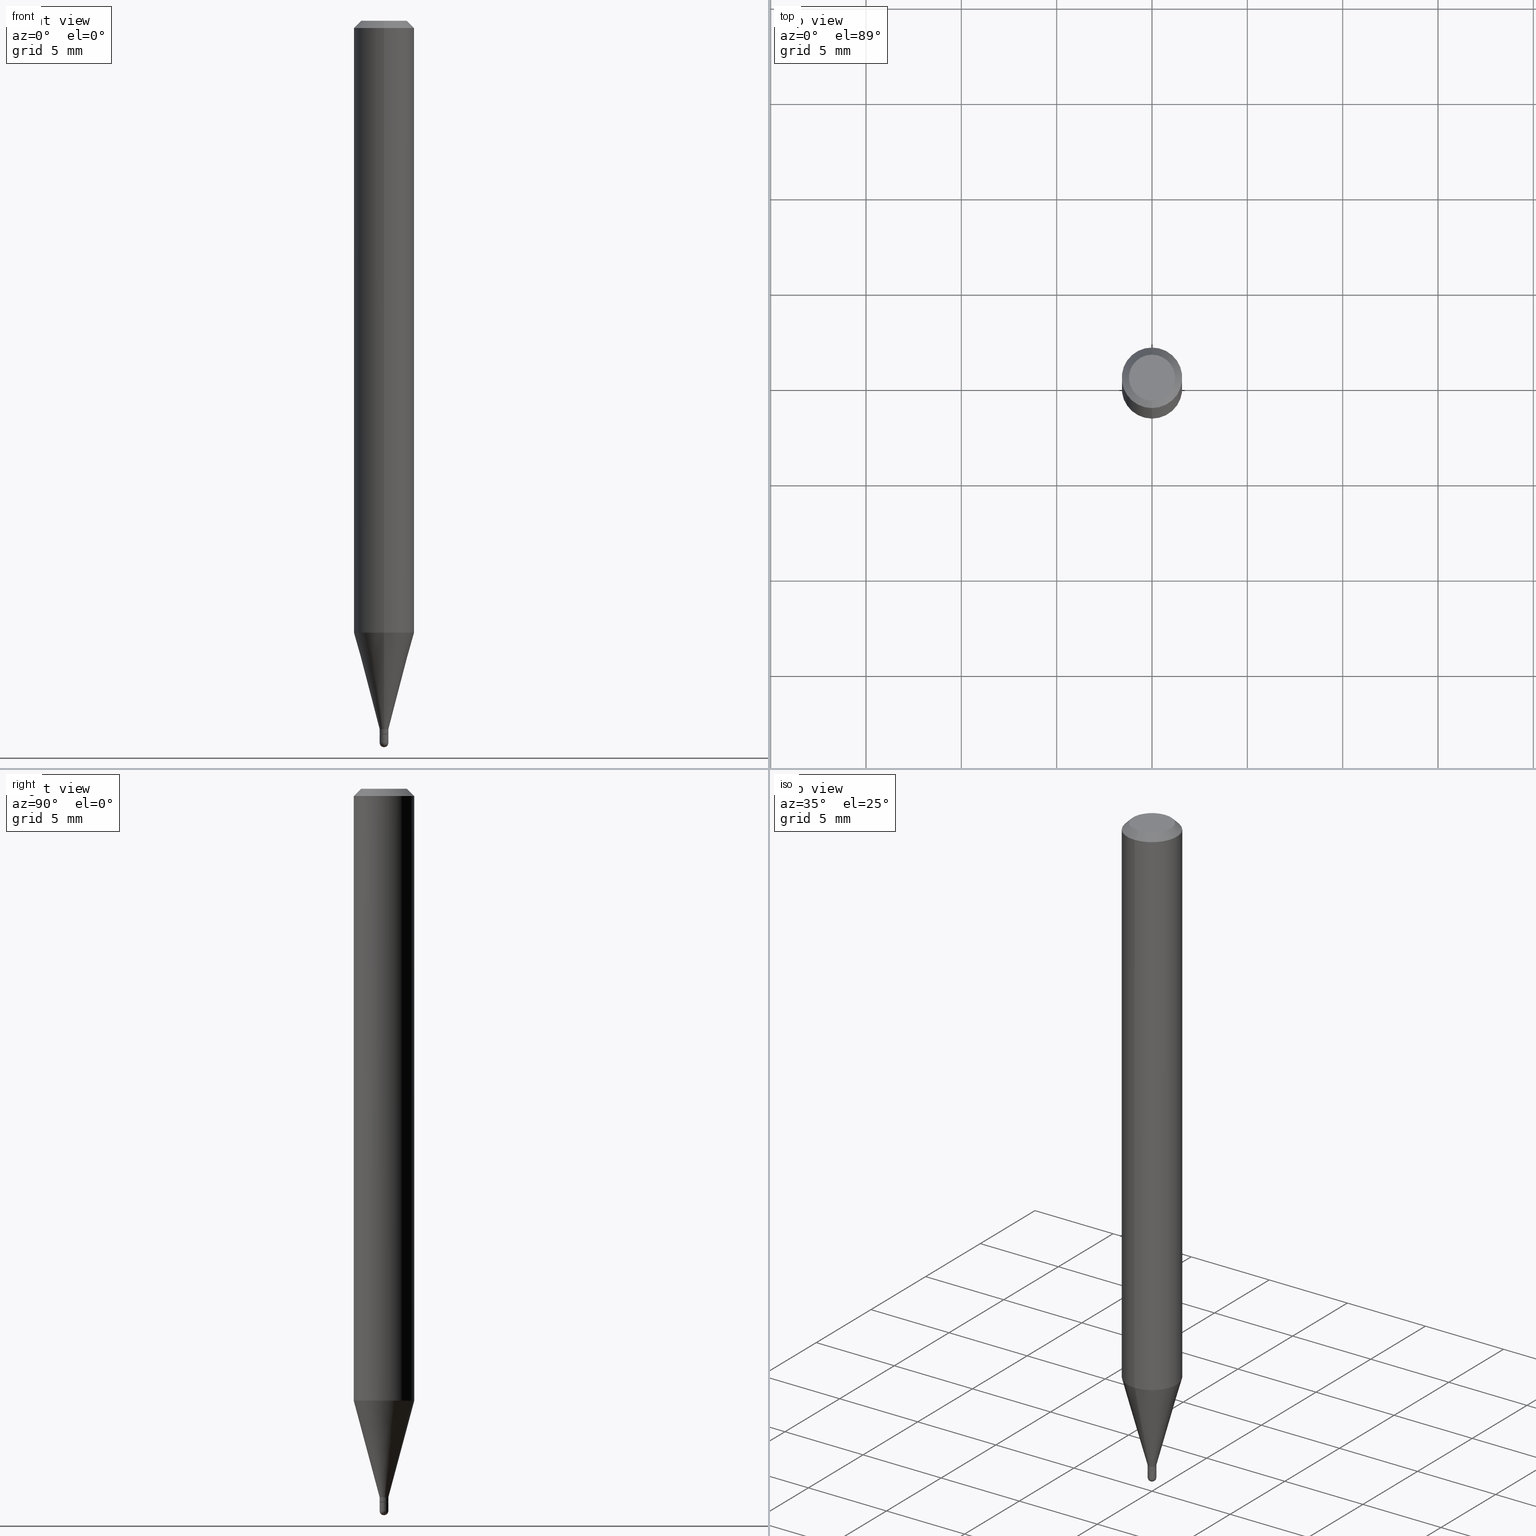
[diagram: canonical four-view strip — front | top / right | iso, engineering-drawing reading convention]
A machine part, canonical four-view strip (front | top / right | iso — engineering-drawing reading convention). The complete STEP part file that produces these views, byte-faithful:
ISO-10303-21;
HEADER;
FILE_DESCRIPTION (( 'STEP AP203' ),
    '1' );
FILE_NAME ('00682.STEP',
    '2024-03-07T18:01:16',
    ( '' ),
    ( '' ),
    'SwSTEP 2.0',
    'SolidWorks 2023',
    '' );
FILE_SCHEMA (( 'CONFIG_CONTROL_DESIGN' ));
ENDSEC;

DATA;
#1 = APPLICATION_CONTEXT ( 'configuration controlled 3d designs of mechanical parts and assemblies' ) ;
#2 = DIRECTION ( 'NONE',  ( -6.982962677686265922E-15, -1.000000000000000000, 3.491492902023324222E-15 ) ) ;
#3 = ORIENTED_EDGE ( 'NONE', *, *, #469, .F. ) ;
#4 = DESIGN_CONTEXT ( 'detailed design', #1, 'design' ) ;
#5 = EDGE_CURVE ( 'NONE', #14, #309, #97, .T. ) ;
#6 = DIRECTION ( 'NONE',  ( -2.445468806185136597E-29, 3.491481338843145583E-15, 1.000000000000000000 ) ) ;
#7 = EDGE_LOOP ( 'NONE', ( #205, #386, #238, #426 ) ) ;
#8 = CIRCLE ( 'NONE', #106, 0.008999999999999922992 ) ;
#9 = DIRECTION ( 'NONE',  ( -6.982962677686265922E-15, -1.000000000000000000, 3.491492902023324222E-15 ) ) ;
#10 = ORIENTED_EDGE ( 'NONE', *, *, #112, .T. ) ;
#11 = DIRECTION ( 'NONE',  ( -2.445460731659574078E-29, 3.491492902023324222E-15, 1.000000000000000000 ) ) ;
#12 = DIRECTION ( 'NONE',  ( -2.445460731659574358E-29, 3.491492902023324222E-15, 1.000000000000000000 ) ) ;
#13 = CARTESIAN_POINT ( 'NONE',  ( 4.440892098500625669E-16, 0.06250000000000000000, -2.182183063764577639E-16 ) ) ;
#14 = VERTEX_POINT ( 'NONE', #161 ) ;
#15 = ADVANCED_FACE ( 'NONE', ( #50 ), #113, .T. ) ;
#16 = AXIS2_PLACEMENT_3D ( 'NONE', #78, #263, #304 ) ;
#17 = APPROVAL_STATUS ( 'not_yet_approved' ) ;
#18 = CARTESIAN_POINT ( 'NONE',  ( 6.394884621844426412E-17, 0.008999999999994753516, -1.472500000000000142 ) ) ;
#19 = DATE_TIME_ROLE ( 'classification_date' ) ;
#20 = CARTESIAN_POINT ( 'NONE',  ( 3.577709050417957687E-29, -5.108054115660124222E-15, -1.463000000000000300 ) ) ;
#21 = APPROVAL_ROLE ( '' ) ;
#22 = CARTESIAN_POINT ( 'NONE',  ( 3.645424340361776999E-29, -5.206900858334362902E-15, -1.491000000000000103 ) ) ;
#23 = AXIS2_PLACEMENT_3D ( 'NONE', #338, #107, #459 ) ;
#24 = APPROVAL_DATE_TIME ( #254, #414 ) ;
#25 = FACE_OUTER_BOUND ( 'NONE', #163, .T. ) ;
#26 = VECTOR ( 'NONE', #482, 39.37007874015748143 ) ;
#27 = COORDINATED_UNIVERSAL_TIME_OFFSET ( 5, 0, .BEHIND. ) ;
#28 = EDGE_CURVE ( 'NONE', #98, #243, #49, .T. ) ;
#29 = DIRECTION ( 'NONE',  ( -6.982962677686265922E-15, -1.000000000000000000, 0.000000000000000000 ) ) ;
#30 = CARTESIAN_POINT ( 'NONE',  ( 3.600940927368723166E-29, -5.141223298229345439E-15, -1.472500000000000142 ) ) ;
#31 = AXIS2_PLACEMENT_3D ( 'NONE', #192, #422, #75 ) ;
#32 = DIRECTION ( 'NONE',  ( -2.445468806185136597E-29, 3.491481338843145583E-15, 1.000000000000000000 ) ) ;
#33 = VERTEX_POINT ( 'NONE', #125 ) ;
#34 = CIRCLE ( 'NONE', #124, 0.008499999999999998876 ) ;
#35 = EDGE_CURVE ( 'NONE', #490, #309, #416, .T. ) ;
#36 = DIRECTION ( 'NONE',  ( -2.445460731659574358E-29, 3.491492902023324222E-15, 1.000000000000000000 ) ) ;
#37 = ORIENTED_EDGE ( 'NONE', *, *, #369, .T. ) ;
#38 = CARTESIAN_POINT ( 'NONE',  ( 3.646193990022038953E-29, -5.205798676215130324E-15, -1.491000000000000103 ) ) ;
#39 = ORIENTED_EDGE ( 'NONE', *, *, #437, .F. ) ;
#40 = EDGE_LOOP ( 'NONE', ( #317, #190, #79, #465 ) ) ;
#41 = LOCAL_TIME ( 13, 1, 16.00000000000000000, #298 ) ;
#42 = DIRECTION ( 'NONE',  ( -2.445468806185136597E-29, 3.491481338843145583E-15, 1.000000000000000000 ) ) ;
#43 = EDGE_CURVE ( 'NONE', #278, #132, #127, .T. ) ;
#44 = ORIENTED_EDGE ( 'NONE', *, *, #43, .T. ) ;
#45 = CYLINDRICAL_SURFACE ( 'NONE', #320, 0.06250000000000000000 ) ;
#46 = EDGE_LOOP ( 'NONE', ( #235, #357, #447, #39 ) ) ;
#47 = UNCERTAINTY_MEASURE_WITH_UNIT (LENGTH_MEASURE( 1.000000000000000082E-05 ), #436, 'distance_accuracy_value', 'NONE');
#48 = FACE_OUTER_BOUND ( 'NONE', #7, .T. ) ;
#49 = CIRCLE ( 'NONE', #257, 0.009000000000000047892 ) ;
#50 = FACE_OUTER_BOUND ( 'NONE', #240, .T. ) ;
#51 = AXIS2_PLACEMENT_3D ( 'NONE', #349, #147, #503 ) ;
#52 = EDGE_CURVE ( 'NONE', #132, #490, #280, .T. ) ;
#53 = CIRCLE ( 'NONE', #471, 0.04749999999999999362 ) ;
#54 = DIRECTION ( 'NONE',  ( -2.445468806185136877E-29, 3.491481338843145188E-15, 1.000000000000000000 ) ) ;
#55 = EDGE_LOOP ( 'NONE', ( #290, #156, #224, #509 ) ) ;
#56 = DIRECTION ( 'NONE',  ( 1.000000000000000000, -6.982962677686225690E-15, 0.000000000000000000 ) ) ;
#57 = ORIENTED_EDGE ( 'NONE', *, *, #344, .T. ) ;
#58 = PERSON_AND_ORGANIZATION ( #419, #288 ) ;
#59 = CARTESIAN_POINT ( 'NONE',  ( 3.577709050417957687E-29, -5.108054115660124222E-15, -1.463000000000000300 ) ) ;
#60 = CLOSED_SHELL ( 'NONE', ( #463, #185, #259, #421, #15, #104, #432, #322, #237, #462, #209, #356 ) ) ;
#61 = AXIS2_PLACEMENT_3D ( 'NONE', #134, #74, #175 ) ;
#62 = VECTOR ( 'NONE', #54, 39.37007874015748143 ) ;
#63 = FACE_OUTER_BOUND ( 'NONE', #87, .T. ) ;
#64 = ADVANCED_FACE ( 'NONE', ( #25 ), #253, .F. ) ;
#65 = PERSON_AND_ORGANIZATION ( #419, #288 ) ;
#66 = DIRECTION ( 'NONE',  ( 6.982962677686265922E-15, 1.000000000000000000, 0.000000000000000000 ) ) ;
#67 = APPROVAL_STATUS ( 'not_yet_approved' ) ;
#68 = LINE ( 'NONE', #372, #69 ) ;
#69 = VECTOR ( 'NONE', #333, 39.37007874015748143 ) ;
#70 = EDGE_CURVE ( 'NONE', #14, #132, #285, .T. ) ;
#71 = CC_DESIGN_PERSON_AND_ORGANIZATION_ASSIGNMENT ( #330, #135, ( #101 ) ) ;
#72 = LINE ( 'NONE', #102, #444 ) ;
#73 = SECURITY_CLASSIFICATION ( '', '', #248 ) ;
#74 = DIRECTION ( 'NONE',  ( -2.445460731659574358E-29, 3.491492902023324222E-15, 1.000000000000000000 ) ) ;
#75 = DIRECTION ( 'NONE',  ( -6.982962677686265922E-15, -1.000000000000000000, 3.491492902023324222E-15 ) ) ;
#76 = ORIENTED_EDGE ( 'NONE', *, *, #146, .T. ) ;
#77 = AXIS2_PLACEMENT_3D ( 'NONE', #38, #341, #472 ) ;
#78 = CARTESIAN_POINT ( 'NONE',  ( 3.668191097489363552E-31, -5.237239353034989144E-17, -0.01500000000000000812 ) ) ;
#79 = ORIENTED_EDGE ( 'NONE', *, *, #176, .T. ) ;
#80 = APPROVAL ( #99, 'UNSPECIFIED' ) ;
#81 = DIRECTION ( 'NONE',  ( -4.851104656540964275E-15, -0.7071067811865500152, -0.7071067811865450192 ) ) ;
#82 = EDGE_LOOP ( 'NONE', ( #266, #57, #270, #393 ) ) ;
#83 = CARTESIAN_POINT ( 'NONE',  ( 3.668191097489363552E-31, -5.237239353034989144E-17, -0.01500000000000000812 ) ) ;
#84 = ORIENTED_EDGE ( 'NONE', *, *, #404, .F. ) ;
#85 = EDGE_CURVE ( 'NONE', #150, #14, #72, .T. ) ;
#86 = SPHERICAL_SURFACE ( 'NONE', #195, 0.009000000000000047892 ) ;
#87 = EDGE_LOOP ( 'NONE', ( #282, #358 ) ) ;
#88 = CARTESIAN_POINT ( 'NONE',  ( 3.602163657734552898E-29, -5.142969044680356916E-15, -1.473000000000000087 ) ) ;
#89 = CARTESIAN_POINT ( 'NONE',  ( 3.577709050417957687E-29, -5.108054115660124222E-15, -1.463000000000000300 ) ) ;
#90 = CARTESIAN_POINT ( 'NONE',  ( -6.284666409914007187E-17, -0.009000000000005030018, -1.463000000000000300 ) ) ;
#91 = ORIENTED_EDGE ( 'NONE', *, *, #168, .T. ) ;
#92 = FACE_OUTER_BOUND ( 'NONE', #122, .T. ) ;
#93 = ORIENTED_EDGE ( 'NONE', *, *, #152, .T. ) ;
#94 = AXIS2_PLACEMENT_3D ( 'NONE', #464, #306, #502 ) ;
#95 = PRODUCT_RELATED_PRODUCT_CATEGORY ( 'detail', '', ( #119 ) ) ;
#96 = DIRECTION ( 'NONE',  ( -2.445460731659574358E-29, 3.491492902023324222E-15, 1.000000000000000000 ) ) ;
#97 = LINE ( 'NONE', #483, #284 ) ;
#98 = VERTEX_POINT ( 'NONE', #294 ) ;
#99 = APPROVAL_STATUS ( 'not_yet_approved' ) ;
#100 = CARTESIAN_POINT ( 'NONE',  ( 6.394884621840845723E-17, 0.008999999999999922992, -3.142343611820964767E-17 ) ) ;
#101 = PRODUCT_DEFINITION_FORMATION_WITH_SPECIFIED_SOURCE ( 'ANY', '', #119, .NOT_KNOWN. ) ;
#102 = CARTESIAN_POINT ( 'NONE',  ( -5.935518276029722497E-17, -0.008500000000005140596, -1.473000000000000087 ) ) ;
#103 = CARTESIAN_POINT ( 'NONE',  ( 3.646193990022038953E-29, -5.205798676215130324E-15, -1.491000000000000103 ) ) ;
#104 = ADVANCED_FACE ( 'NONE', ( #172 ), #508, .T. ) ;
#105 = DIRECTION ( 'NONE',  ( -2.445460731659574358E-29, 3.491492902023324222E-15, 1.000000000000000000 ) ) ;
#106 = AXIS2_PLACEMENT_3D ( 'NONE', #30, #196, #346 ) ;
#107 = DIRECTION ( 'NONE',  ( -2.445460731659574358E-29, 3.491492902023324222E-15, 1.000000000000000000 ) ) ;
#108 = AXIS2_PLACEMENT_3D ( 'NONE', #324, #96, #9 ) ;
#109 = LINE ( 'NONE', #380, #406 ) ;
#110 = ORIENTED_EDGE ( 'NONE', *, *, #375, .F. ) ;
#111 = FACE_OUTER_BOUND ( 'NONE', #323, .T. ) ;
#112 = EDGE_CURVE ( 'NONE', #309, #490, #144, .T. ) ;
#113 = CONICAL_SURFACE ( 'NONE', #353, 0.008999999999999922992, 0.2617993877991502960 ) ;
#114 = CIRCLE ( 'NONE', #51, 0.06250000000000000000 ) ;
#115 = CARTESIAN_POINT ( 'NONE',  ( -3.773273898774340269E-16, -0.04749999999999999362, 1.569861425053352806E-16 ) ) ;
#116 = VERTEX_POINT ( 'NONE', #143 ) ;
#117 = CARTESIAN_POINT ( 'NONE',  ( 3.602163657734552898E-29, -5.142969044680356916E-15, -1.473000000000000087 ) ) ;
#118 = VERTEX_POINT ( 'NONE', #340 ) ;
#119 = PRODUCT ( '00682', '00682', '', ( #296 ) ) ;
#120 = CC_DESIGN_PERSON_AND_ORGANIZATION_ASSIGNMENT ( #179, #495, ( #101 ) ) ;
#121 = DIRECTION ( 'NONE',  ( -2.445460731659574358E-29, 3.491492902023324222E-15, 1.000000000000000000 ) ) ;
#122 = EDGE_LOOP ( 'NONE', ( #193, #389, #315, #384 ) ) ;
#123 = ORIENTED_EDGE ( 'NONE', *, *, #152, .F. ) ;
#124 = AXIS2_PLACEMENT_3D ( 'NONE', #117, #272, #430 ) ;
#125 = CARTESIAN_POINT ( 'NONE',  ( -6.394884621837272429E-17, -0.009000000000005229511, -1.491000000000000103 ) ) ;
#126 = DIRECTION ( 'NONE',  ( -2.445460731659574358E-29, 3.491492902023324222E-15, 1.000000000000000000 ) ) ;
#127 = LINE ( 'NONE', #321, #258 ) ;
#128 = CARTESIAN_POINT ( 'NONE',  ( 3.840629472727447874E-16, 0.04749999999999999362, -1.747056831868805136E-16 ) ) ;
#129 = ORIENTED_EDGE ( 'NONE', *, *, #265, .F. ) ;
#130 = CC_DESIGN_SECURITY_CLASSIFICATION ( #73, ( #101 ) ) ;
#131 = CARTESIAN_POINT ( 'NONE',  ( 2.166622045988159040E-46, -3.093382525836433733E-32, -8.859770340772611896E-18 ) ) ;
#132 = VERTEX_POINT ( 'NONE', #18 ) ;
#133 = DATE_AND_TIME ( #339, #162 ) ;
#134 = CARTESIAN_POINT ( 'NONE',  ( 3.089436822549915707E-29, -4.410926169263107642E-15, -1.263335281795065823 ) ) ;
#135 = PERSON_AND_ORGANIZATION_ROLE ( 'design_supplier' ) ;
#136 = DIRECTION ( 'NONE',  ( -2.445460731659574358E-29, 3.491492902023324222E-15, 1.000000000000000000 ) ) ;
#137 = AXIS2_PLACEMENT_3D ( 'NONE', #103, #261, #302 ) ;
#138 = APPROVAL_DATE_TIME ( #499, #271 ) ;
#139 = VECTOR ( 'NONE', #314, 39.37007874015748143 ) ;
#140 = DIRECTION ( 'NONE',  ( -7.105427357601001859E-15, -1.000000000000000000, 0.000000000000000000 ) ) ;
#141 = PERSON_AND_ORGANIZATION_ROLE ( 'creator' ) ;
#142 = CARTESIAN_POINT ( 'NONE',  ( 6.284666409921241288E-17, 0.008999999999994855865, -1.473000000000000087 ) ) ;
#143 = CARTESIAN_POINT ( 'NONE',  ( -4.364351673553608052E-16, -0.06250000000000441314, -1.263335281795065601 ) ) ;
#144 = CIRCLE ( 'NONE', #381, 0.008999999999999922992 ) ;
#145 = FACE_OUTER_BOUND ( 'NONE', #202, .T. ) ;
#146 = EDGE_CURVE ( 'NONE', #33, #470, #434, .T. ) ;
#147 = DIRECTION ( 'NONE',  ( -2.445460731659574358E-29, 3.491492902023324222E-15, 1.000000000000000000 ) ) ;
#148 = EDGE_LOOP ( 'NONE', ( #397, #44, #228, #512 ) ) ;
#149 = CARTESIAN_POINT ( 'NONE',  ( 3.602163657734552898E-29, -5.142969044680356916E-15, -1.473000000000000087 ) ) ;
#150 = VERTEX_POINT ( 'NONE', #336 ) ;
#151 = CARTESIAN_POINT ( 'NONE',  ( 3.646193990022038953E-29, -5.205798676215130324E-15, -1.491000000000000103 ) ) ;
#152 = EDGE_CURVE ( 'NONE', #490, #328, #255, .T. ) ;
#153 = ORIENTED_EDGE ( 'NONE', *, *, #316, .F. ) ;
#154 = APPROVAL_PERSON_ORGANIZATION ( #291, #80, #415 ) ;
#155 = CARTESIAN_POINT ( 'NONE',  ( 4.364351673553919652E-16, 0.06249999999999995143, -0.01500000000000022669 ) ) ;
#156 = ORIENTED_EDGE ( 'NONE', *, *, #28, .T. ) ;
#157 = DIRECTION ( 'NONE',  ( -2.445460731659574358E-29, 3.491492902023324222E-15, 1.000000000000000000 ) ) ;
#158 = DIRECTION ( 'NONE',  ( 6.982962677686265922E-15, 1.000000000000000000, 0.000000000000000000 ) ) ;
#159 = ADVANCED_FACE ( 'NONE', ( #413 ), #452, .T. ) ;
#160 = CIRCLE ( 'NONE', #233, 0.06250000000000000000 ) ;
#161 = CARTESIAN_POINT ( 'NONE',  ( -6.284666409914005955E-17, -0.009000000000005094203, -1.472500000000000142 ) ) ;
#162 = LOCAL_TIME ( 13, 1, 16.00000000000000000, #177 ) ;
#163 = EDGE_LOOP ( 'NONE', ( #405, #401 ) ) ;
#164 = CYLINDRICAL_SURFACE ( 'NONE', #108, 0.008999999999999922992 ) ;
#165 = DIRECTION ( 'NONE',  ( -6.982962677686265922E-15, -1.000000000000000000, 0.000000000000000000 ) ) ;
#166 = DIRECTION ( 'NONE',  ( -2.445468806185136597E-29, 3.491481338843145583E-15, 1.000000000000000000 ) ) ;
#167 = ORIENTED_EDGE ( 'NONE', *, *, #168, .F. ) ;
#168 = EDGE_CURVE ( 'NONE', #470, #438, #68, .T. ) ;
#169 = CC_DESIGN_PERSON_AND_ORGANIZATION_ASSIGNMENT ( #58, #371, ( #119 ) ) ;
#170 = LOCAL_TIME ( 13, 1, 16.00000000000000000, #458 ) ;
#171 = APPROVAL_DATE_TIME ( #133, #80 ) ;
#172 = FACE_OUTER_BOUND ( 'NONE', #230, .T. ) ;
#173 = DIMENSIONAL_EXPONENTS ( 1.000000000000000000, 0.000000000000000000, 0.000000000000000000, 0.000000000000000000, 0.000000000000000000, 0.000000000000000000, 0.000000000000000000 ) ;
#174 = PERSON_AND_ORGANIZATION ( #419, #288 ) ;
#175 = DIRECTION ( 'NONE',  ( -6.982962677686265922E-15, -1.000000000000000000, 4.370956789862821150E-15 ) ) ;
#176 = EDGE_CURVE ( 'NONE', #116, #363, #217, .T. ) ;
#177 = COORDINATED_UNIVERSAL_TIME_OFFSET ( 5, 0, .BEHIND. ) ;
#178 = DIRECTION ( 'NONE',  ( -4.937700262164674260E-15, -0.7071067811865632269, 0.7071067811865319186 ) ) ;
#179 = PERSON_AND_ORGANIZATION ( #419, #288 ) ;
#180 = AXIS2_PLACEMENT_3D ( 'NONE', #88, #11, #2 ) ;
#181 = DIRECTION ( 'NONE',  ( -6.982962677686265922E-15, -1.000000000000000000, 0.000000000000000000 ) ) ;
#182 = PRODUCT_DEFINITION ( 'UNKNOWN', '', #101, #4 ) ;
#183 = DIRECTION ( 'NONE',  ( -1.000000000000000000, 6.982962677686265922E-15, -4.876176775795935793E-29 ) ) ;
#184 = CARTESIAN_POINT ( 'NONE',  ( 3.316907271900976096E-16, 0.04749999999999999362, -1.702757980164941992E-16 ) ) ;
#185 = ADVANCED_FACE ( 'NONE', ( #252 ), #268, .T. ) ;
#186 = AXIS2_PLACEMENT_3D ( 'NONE', #362, #242, #445 ) ;
#187 = DIRECTION ( 'NONE',  ( 6.982962677686265922E-15, 1.000000000000000000, 0.000000000000000000 ) ) ;
#188 = EDGE_LOOP ( 'NONE', ( #325, #440, #350, #429 ) ) ;
#189 = CARTESIAN_POINT ( 'NONE',  ( 2.166622045988159040E-46, -3.093382525836433733E-32, -8.859770340772611896E-18 ) ) ;
#190 = ORIENTED_EDGE ( 'NONE', *, *, #316, .T. ) ;
#191 = EDGE_CURVE ( 'NONE', #98, #33, #494, .T. ) ;
#192 = CARTESIAN_POINT ( 'NONE',  ( 0.000000000000000000, 0.000000000000000000, 0.000000000000000000 ) ) ;
#193 = ORIENTED_EDGE ( 'NONE', *, *, #197, .T. ) ;
#194 = AXIS2_PLACEMENT_3D ( 'NONE', #89, #395, #247 ) ;
#195 = AXIS2_PLACEMENT_3D ( 'NONE', #424, #379, #187 ) ;
#196 = DIRECTION ( 'NONE',  ( -2.445460731659574358E-29, 3.491492902023324222E-15, 1.000000000000000000 ) ) ;
#197 = EDGE_CURVE ( 'NONE', #116, #328, #501, .T. ) ;
#198 = EDGE_LOOP ( 'NONE', ( #129, #110 ) ) ;
#199 = DIRECTION ( 'NONE',  ( 1.000000000000000000, -6.982962677686266711E-15, 4.876176775795935232E-29 ) ) ;
#200 = ORIENTED_EDGE ( 'NONE', *, *, #85, .T. ) ;
#201 =( LENGTH_UNIT ( ) NAMED_UNIT ( * ) SI_UNIT ( $, .METRE. ) );
#202 = EDGE_LOOP ( 'NONE', ( #467, #506, #313, #450 ) ) ;
#203 = CIRCLE ( 'NONE', #225, 0.008499999999999998876 ) ;
#204 = CARTESIAN_POINT ( 'NONE',  ( 0.000000000000000000, 0.000000000000000000, 0.000000000000000000 ) ) ;
#205 = ORIENTED_EDGE ( 'NONE', *, *, #70, .T. ) ;
#206 = DIRECTION ( 'NONE',  ( 1.000000000000000000, -6.982962677686225690E-15, 0.000000000000000000 ) ) ;
#207 = VERTEX_POINT ( 'NONE', #420 ) ;
#208 = CARTESIAN_POINT ( 'NONE',  ( 0.008999999999999999320, -5.237222008264718177E-15, -1.491000000000000103 ) ) ;
#209 = ADVANCED_FACE ( 'NONE', ( #377 ), #398, .T. ) ;
#210 = ORIENTED_EDGE ( 'NONE', *, *, #197, .F. ) ;
#211 = DATE_TIME_ROLE ( 'creation_date' ) ;
#212 = VECTOR ( 'NONE', #455, 39.37007874015748143 ) ;
#213 = CARTESIAN_POINT ( 'NONE',  ( 3.645424340361776999E-29, -5.206900858334362902E-15, -1.491000000000000103 ) ) ;
#214 = PLANE ( 'NONE',  #376 ) ;
#215 = EDGE_CURVE ( 'NONE', #363, #232, #160, .T. ) ;
#216 = PERSON_AND_ORGANIZATION ( #419, #288 ) ;
#217 = LINE ( 'NONE', #374, #212 ) ;
#218 = DIRECTION ( 'NONE',  ( -2.445460731659574358E-29, 3.491492902023324222E-15, 1.000000000000000000 ) ) ;
#219 = AXIS2_PLACEMENT_3D ( 'NONE', #496, #461, #66 ) ;
#220 = CIRCLE ( 'NONE', #391, 0.008999999999999999320 ) ;
#221 = DIRECTION ( 'NONE',  ( -2.445460731659574358E-29, 3.491492902023324222E-15, 1.000000000000000000 ) ) ;
#222 = CARTESIAN_POINT ( 'NONE',  ( 3.668191097489363552E-31, -5.237239353034989144E-17, -0.01500000000000000812 ) ) ;
#223 = DIRECTION ( 'NONE',  ( -6.982962677686265922E-15, -1.000000000000000000, 0.000000000000000000 ) ) ;
#224 = ORIENTED_EDGE ( 'NONE', *, *, #369, .F. ) ;
#225 = AXIS2_PLACEMENT_3D ( 'NONE', #149, #36, #223 ) ;
#226 = CARTESIAN_POINT ( 'NONE',  ( 6.284666409921301685E-17, 0.008999999999994817701, -1.491000000000000103 ) ) ;
#227 = ADVANCED_BREP_SHAPE_REPRESENTATION ( '00682', ( #427, #262, #260 ), #303 ) ;
#228 = ORIENTED_EDGE ( 'NONE', *, *, #70, .F. ) ;
#229 = CYLINDRICAL_SURFACE ( 'NONE', #31, 0.008999999999999922992 ) ;
#230 = EDGE_LOOP ( 'NONE', ( #123, #474, #423, #153 ) ) ;
#231 = CARTESIAN_POINT ( 'NONE',  ( -4.364351673553912750E-16, -0.06250000000000005551, -0.01499999999999979128 ) ) ;
#232 = VERTEX_POINT ( 'NONE', #408 ) ;
#233 = AXIS2_PLACEMENT_3D ( 'NONE', #222, #256, #418 ) ;
#234 = CYLINDRICAL_SURFACE ( 'NONE', #400, 0.008999999999999999320 ) ;
#235 = ORIENTED_EDGE ( 'NONE', *, *, #28, .F. ) ;
#236 = LINE ( 'NONE', #13, #244 ) ;
#237 = ADVANCED_FACE ( 'NONE', ( #63 ), #214, .F. ) ;
#238 = ORIENTED_EDGE ( 'NONE', *, *, #112, .F. ) ;
#239 = FACE_OUTER_BOUND ( 'NONE', #198, .T. ) ;
#240 = EDGE_LOOP ( 'NONE', ( #10, #93, #210, #84 ) ) ;
#241 = AXIS2_PLACEMENT_3D ( 'NONE', #492, #105, #181 ) ;
#242 = DIRECTION ( 'NONE',  ( -2.445460731659574358E-29, 3.491492902023324222E-15, 1.000000000000000000 ) ) ;
#243 = VERTEX_POINT ( 'NONE', #226 ) ;
#244 = VECTOR ( 'NONE', #157, 39.37007874015748143 ) ;
#245 = EDGE_CURVE ( 'NONE', #443, #305, #417, .T. ) ;
#246 = DIRECTION ( 'NONE',  ( -2.445460731659574358E-29, 3.491492902023324222E-15, 1.000000000000000000 ) ) ;
#247 = DIRECTION ( 'NONE',  ( -6.982962677686265922E-15, -1.000000000000000000, 0.000000000000000000 ) ) ;
#248 = SECURITY_CLASSIFICATION_LEVEL ( 'unclassified' ) ;
#249 = ORIENTED_EDGE ( 'NONE', *, *, #437, .T. ) ;
#250 = CALENDAR_DATE ( 2024, 7, 3 ) ;
#251 = CIRCLE ( 'NONE', #479, 0.008999999999999999320 ) ;
#252 = FACE_OUTER_BOUND ( 'NONE', #148, .T. ) ;
#253 = PLANE ( 'NONE',  #318 ) ;
#254 = DATE_AND_TIME ( #493, #41 ) ;
#255 = LINE ( 'NONE', #457, #487 ) ;
#256 = DIRECTION ( 'NONE',  ( -2.445460731659574358E-29, 3.491492902023324222E-15, 1.000000000000000000 ) ) ;
#257 = AXIS2_PLACEMENT_3D ( 'NONE', #213, #368, #158 ) ;
#258 = VECTOR ( 'NONE', #403, 39.37007874015748143 ) ;
#259 = ADVANCED_FACE ( 'NONE', ( #428 ), #453, .T. ) ;
#260 = AXIS2_PLACEMENT_3D ( 'NONE', #497, #293, #334 ) ;
#261 = DIRECTION ( 'NONE',  ( -2.445468806185136597E-29, 3.491481338843145583E-15, 1.000000000000000000 ) ) ;
#262 = MANIFOLD_SOLID_BREP ( 'Body-Move/Copy2[2]', #60 ) ;
#263 = DIRECTION ( 'NONE',  ( 2.445460731659574358E-29, -3.491492902023324222E-15, -1.000000000000000000 ) ) ;
#264 = FACE_OUTER_BOUND ( 'NONE', #188, .T. ) ;
#265 = EDGE_CURVE ( 'NONE', #150, #278, #203, .T. ) ;
#266 = ORIENTED_EDGE ( 'NONE', *, *, #411, .F. ) ;
#267 = CLOSED_SHELL ( 'NONE', ( #348, #276, #64, #159, #504 ) ) ;
#268 = CONICAL_SURFACE ( 'NONE', #241, 0.008499999999999998876, 0.7853981633974739252 ) ;
#269 = DIRECTION ( 'NONE',  ( -6.982962677686266711E-15, -1.000000000000000000, 3.491492902023324222E-15 ) ) ;
#270 = ORIENTED_EDGE ( 'NONE', *, *, #215, .T. ) ;
#271 = APPROVAL ( #67, 'UNSPECIFIED' ) ;
#272 = DIRECTION ( 'NONE',  ( -2.445460731659574358E-29, 3.491492902023324222E-15, 1.000000000000000000 ) ) ;
#273 = CARTESIAN_POINT ( 'NONE',  ( 6.217248937904449279E-17, 0.008499999999994855421, -1.473000000000000087 ) ) ;
#274 = ORIENTED_EDGE ( 'NONE', *, *, #300, .T. ) ;
#275 = AXIS2_PLACEMENT_3D ( 'NONE', #20, #331, #498 ) ;
#276 = ADVANCED_FACE ( 'NONE', ( #355 ), #86, .T. ) ;
#277 = LENGTH_MEASURE_WITH_UNIT ( LENGTH_MEASURE( 0.02539999999999999897 ), #201 );
#278 = VERTEX_POINT ( 'NONE', #273 ) ;
#279 =( NAMED_UNIT ( * ) SI_UNIT ( $, .STERADIAN. ) SOLID_ANGLE_UNIT ( ) );
#280 = LINE ( 'NONE', #100, #335 ) ;
#281 = LINE ( 'NONE', #442, #62 ) ;
#282 = ORIENTED_EDGE ( 'NONE', *, *, #245, .T. ) ;
#283 = EDGE_CURVE ( 'NONE', #132, #14, #8, .T. ) ;
#284 = VECTOR ( 'NONE', #359, 39.37007874015748143 ) ;
#285 = CIRCLE ( 'NONE', #366, 0.008999999999999922992 ) ;
#286 = CARTESIAN_POINT ( 'NONE',  ( 3.602175551510706507E-29, -5.142952012115953829E-15, -1.473000000000000087 ) ) ;
#287 = ORIENTED_EDGE ( 'NONE', *, *, #375, .T. ) ;
#288 = ORGANIZATION ( 'UNSPECIFIED', 'UNSPECIFIED', '' ) ;
#289 = FACE_OUTER_BOUND ( 'NONE', #40, .T. ) ;
#290 = ORIENTED_EDGE ( 'NONE', *, *, #191, .F. ) ;
#291 = PERSON_AND_ORGANIZATION ( #419, #288 ) ;
#292 = DIRECTION ( 'NONE',  ( 2.438088387897960049E-29, -3.491481338843145188E-15, -1.000000000000000000 ) ) ;
#293 = DIRECTION ( 'NONE',  ( 0.000000000000000000, 0.000000000000000000, 1.000000000000000000 ) ) ;
#294 = CARTESIAN_POINT ( 'NONE',  ( 3.667818384447574198E-29, -5.237773099324335255E-15, -1.500000000000000222 ) ) ;
#295 = CC_DESIGN_APPROVAL ( #80, ( #101 ) ) ;
#296 = MECHANICAL_CONTEXT ( 'NONE', #343, 'mechanical' ) ;
#297 = CARTESIAN_POINT ( 'NONE',  ( 3.600940927368723166E-29, -5.141223298229345439E-15, -1.472500000000000142 ) ) ;
#298 = COORDINATED_UNIVERSAL_TIME_OFFSET ( 5, 0, .BEHIND. ) ;
#299 = DIRECTION ( 'NONE',  ( -6.982962677686265922E-15, -1.000000000000000000, 0.000000000000000000 ) ) ;
#300 = EDGE_CURVE ( 'NONE', #207, #33, #310, .T. ) ;
#301 = APPLICATION_PROTOCOL_DEFINITION ( 'international standard', 'config_control_design', 1994, #343 ) ;
#302 = DIRECTION ( 'NONE',  ( 1.000000000000000000, -6.982962677686225690E-15, 0.000000000000000000 ) ) ;
#303 =( GEOMETRIC_REPRESENTATION_CONTEXT ( 3 ) GLOBAL_UNCERTAINTY_ASSIGNED_CONTEXT ( ( #47 ) ) GLOBAL_UNIT_ASSIGNED_CONTEXT ( ( #436, #319, #279 ) ) REPRESENTATION_CONTEXT ( 'NONE', 'WORKASPACE' ) );
#304 = DIRECTION ( 'NONE',  ( 6.982962677686265922E-15, 1.000000000000000000, -3.483106191921935554E-15 ) ) ;
#305 = VERTEX_POINT ( 'NONE', #115 ) ;
#306 = DIRECTION ( 'NONE',  ( -2.445460731659574358E-29, 3.491492902023324222E-15, 1.000000000000000000 ) ) ;
#307 = DIRECTION ( 'NONE',  ( 1.000000000000000000, -6.982962677686266711E-15, 4.876176775795935232E-29 ) ) ;
#308 = EDGE_CURVE ( 'NONE', #232, #363, #390, .T. ) ;
#309 = VERTEX_POINT ( 'NONE', #466 ) ;
#310 = CIRCLE ( 'NONE', #77, 0.008999999999999999320 ) ;
#311 = CIRCLE ( 'NONE', #510, 0.008999999999999999320 ) ;
#312 = DIRECTION ( 'NONE',  ( 1.000000000000000000, -6.982962677686225690E-15, 0.000000000000000000 ) ) ;
#313 = ORIENTED_EDGE ( 'NONE', *, *, #387, .T. ) ;
#314 = DIRECTION ( 'NONE',  ( 4.937700262164548042E-15, 0.7071067811865451302, -0.7071067811865499042 ) ) ;
#315 = ORIENTED_EDGE ( 'NONE', *, *, #215, .F. ) ;
#316 = EDGE_CURVE ( 'NONE', #328, #116, #114, .T. ) ;
#317 = ORIENTED_EDGE ( 'NONE', *, *, #477, .F. ) ;
#318 = AXIS2_PLACEMENT_3D ( 'NONE', #142, #292, #183 ) ;
#319 =( NAMED_UNIT ( * ) PLANE_ANGLE_UNIT ( ) SI_UNIT ( $, .RADIAN. ) );
#320 = AXIS2_PLACEMENT_3D ( 'NONE', #204, #246, #364 ) ;
#321 = CARTESIAN_POINT ( 'NONE',  ( 6.039613253964452424E-17, 0.008499999999994855421, -1.473000000000000087 ) ) ;
#322 = ADVANCED_FACE ( 'NONE', ( #145 ), #460, .T. ) ;
#323 = EDGE_LOOP ( 'NONE', ( #249, #431, #3, #167, #37 ) ) ;
#324 = CARTESIAN_POINT ( 'NONE',  ( 0.000000000000000000, 0.000000000000000000, 0.000000000000000000 ) ) ;
#325 = ORIENTED_EDGE ( 'NONE', *, *, #52, .F. ) ;
#326 = AXIS2_PLACEMENT_3D ( 'NONE', #189, #121, #269 ) ;
#327 = DIRECTION ( 'NONE',  ( 1.000000000000000000, -6.982962677686225690E-15, 0.000000000000000000 ) ) ;
#328 = VERTEX_POINT ( 'NONE', #507 ) ;
#329 = APPROVAL_PERSON_ORGANIZATION ( #216, #271, #21 ) ;
#330 = PERSON_AND_ORGANIZATION ( #419, #288 ) ;
#331 = DIRECTION ( 'NONE',  ( -2.445460731659574358E-29, 3.491492902023324222E-15, 1.000000000000000000 ) ) ;
#332 = CC_DESIGN_PERSON_AND_ORGANIZATION_ASSIGNMENT ( #412, #141, ( #182 ) ) ;
#333 = DIRECTION ( 'NONE',  ( -2.445468806185136877E-29, 3.491481338843145188E-15, 1.000000000000000000 ) ) ;
#334 = DIRECTION ( 'NONE',  ( 1.000000000000000000, 0.000000000000000000, 0.000000000000000000 ) ) ;
#335 = VECTOR ( 'NONE', #136, 39.37007874015748143 ) ;
#336 = CARTESIAN_POINT ( 'NONE',  ( -5.935518276029722497E-17, -0.008500000000005140596, -1.473000000000000087 ) ) ;
#337 = SHAPE_DEFINITION_REPRESENTATION ( #476, #227 ) ;
#338 = CARTESIAN_POINT ( 'NONE',  ( 3.602163657734552898E-29, -5.142969044680356916E-15, -1.473000000000000087 ) ) ;
#339 = CALENDAR_DATE ( 2024, 7, 3 ) ;
#340 = CARTESIAN_POINT ( 'NONE',  ( -0.008999999999999999320, -5.110426497947132608E-15, -1.473000000000000087 ) ) ;
#341 = DIRECTION ( 'NONE',  ( -2.445468806185136597E-29, 3.491481338843145583E-15, 1.000000000000000000 ) ) ;
#342 = AXIS2_PLACEMENT_3D ( 'NONE', #83, #383, #385 ) ;
#343 = APPLICATION_CONTEXT ( 'configuration controlled 3d designs of mechanical parts and assemblies' ) ;
#344 = EDGE_CURVE ( 'NONE', #305, #363, #109, .T. ) ;
#345 = APPROVAL_PERSON_ORGANIZATION ( #174, #414, #409 ) ;
#346 = DIRECTION ( 'NONE',  ( -6.982962677686265922E-15, -1.000000000000000000, 0.000000000000000000 ) ) ;
#347 = EDGE_LOOP ( 'NONE', ( #352, #274, #76, #91, #365 ) ) ;
#348 = ADVANCED_FACE ( 'NONE', ( #111 ), #511, .T. ) ;
#349 = CARTESIAN_POINT ( 'NONE',  ( 3.089436822549915707E-29, -4.410926169263107642E-15, -1.263335281795065823 ) ) ;
#350 = ORIENTED_EDGE ( 'NONE', *, *, #5, .T. ) ;
#351 = DIRECTION ( 'NONE',  ( 2.445460731659574078E-29, -3.491492902023324222E-15, -1.000000000000000000 ) ) ;
#352 = ORIENTED_EDGE ( 'NONE', *, *, #448, .F. ) ;
#353 = AXIS2_PLACEMENT_3D ( 'NONE', #59, #12, #165 ) ;
#354 = LOCAL_TIME ( 13, 1, 16.00000000000000000, #456 ) ;
#355 = FACE_OUTER_BOUND ( 'NONE', #46, .T. ) ;
#356 = ADVANCED_FACE ( 'NONE', ( #264 ), #229, .T. ) ;
#357 = ORIENTED_EDGE ( 'NONE', *, *, #191, .T. ) ;
#358 = ORIENTED_EDGE ( 'NONE', *, *, #411, .T. ) ;
#359 = DIRECTION ( 'NONE',  ( -2.445460731659574358E-29, 3.491492902023324222E-15, 1.000000000000000000 ) ) ;
#360 = CARTESIAN_POINT ( 'NONE',  ( 3.602175551510706507E-29, -5.142952012115953829E-15, -1.473000000000000087 ) ) ;
#361 = ORIENTED_EDGE ( 'NONE', *, *, #283, .F. ) ;
#362 = CARTESIAN_POINT ( 'NONE',  ( 0.000000000000000000, 0.000000000000000000, 0.000000000000000000 ) ) ;
#363 = VERTEX_POINT ( 'NONE', #231 ) ;
#364 = DIRECTION ( 'NONE',  ( -6.982962677686265922E-15, -1.000000000000000000, 3.491492902023324222E-15 ) ) ;
#365 = ORIENTED_EDGE ( 'NONE', *, *, #486, .F. ) ;
#366 = AXIS2_PLACEMENT_3D ( 'NONE', #297, #218, #299 ) ;
#367 = APPLICATION_PROTOCOL_DEFINITION ( 'international standard', 'config_control_design', 1994, #1 ) ;
#368 = DIRECTION ( 'NONE',  ( 1.000000000000000000, -6.982962677686265922E-15, 4.883557194083112340E-29 ) ) ;
#369 = EDGE_CURVE ( 'NONE', #470, #243, #251, .T. ) ;
#370 = AXIS2_PLACEMENT_3D ( 'NONE', #394, #439, #206 ) ;
#371 = PERSON_AND_ORGANIZATION_ROLE ( 'design_owner' ) ;
#372 = CARTESIAN_POINT ( 'NONE',  ( 0.008999999999999999320, -6.284666409917639645E-17, 4.388559098216341408E-31 ) ) ;
#373 = PERSON_AND_ORGANIZATION_ROLE ( 'classification_officer' ) ;
#374 = CARTESIAN_POINT ( 'NONE',  ( -4.364351673553916201E-16, -0.06250000000000000000, 2.182183063764577639E-16 ) ) ;
#375 = EDGE_CURVE ( 'NONE', #278, #150, #34, .T. ) ;
#376 = AXIS2_PLACEMENT_3D ( 'NONE', #184, #351, #433 ) ;
#377 = FACE_OUTER_BOUND ( 'NONE', #481, .T. ) ;
#378 = CARTESIAN_POINT ( 'NONE',  ( 3.577709050417957687E-29, -5.108054115660124222E-15, -1.463000000000000300 ) ) ;
#379 = DIRECTION ( 'NONE',  ( -1.000000000000000000, 6.982962677686265922E-15, -4.883557194083112340E-29 ) ) ;
#380 = CARTESIAN_POINT ( 'NONE',  ( -4.287811248607203282E-16, -0.06250000000000005551, -0.01499999999999979128 ) ) ;
#381 = AXIS2_PLACEMENT_3D ( 'NONE', #378, #221, #29 ) ;
#382 = CC_DESIGN_DATE_AND_TIME_ASSIGNMENT ( #451, #19, ( #73 ) ) ;
#383 = DIRECTION ( 'NONE',  ( 2.445460731659574358E-29, -3.491492902023324222E-15, -1.000000000000000000 ) ) ;
#384 = ORIENTED_EDGE ( 'NONE', *, *, #176, .F. ) ;
#385 = DIRECTION ( 'NONE',  ( 6.982962677686265922E-15, 1.000000000000000000, -3.483106191921935554E-15 ) ) ;
#386 = ORIENTED_EDGE ( 'NONE', *, *, #52, .T. ) ;
#387 = EDGE_CURVE ( 'NONE', #443, #232, #388, .T. ) ;
#388 = LINE ( 'NONE', #155, #139 ) ;
#389 = ORIENTED_EDGE ( 'NONE', *, *, #477, .T. ) ;
#390 = CIRCLE ( 'NONE', #94, 0.06250000000000000000 ) ;
#391 = AXIS2_PLACEMENT_3D ( 'NONE', #286, #6, #56 ) ;
#392 = CARTESIAN_POINT ( 'NONE',  ( 0.000000000000000000, 0.000000000000000000, 0.000000000000000000 ) ) ;
#393 = ORIENTED_EDGE ( 'NONE', *, *, #387, .F. ) ;
#394 = CARTESIAN_POINT ( 'NONE',  ( 3.646193990022038953E-29, -5.205798676215130324E-15, -1.491000000000000103 ) ) ;
#395 = DIRECTION ( 'NONE',  ( -2.445460731659574358E-29, 3.491492902023324222E-15, 1.000000000000000000 ) ) ;
#396 = PLANE ( 'NONE',  #180 ) ;
#397 = ORIENTED_EDGE ( 'NONE', *, *, #265, .T. ) ;
#398 = CONICAL_SURFACE ( 'NONE', #23, 0.008499999999999998876, 0.7853981633974739252 ) ;
#399 = DIRECTION ( 'NONE',  ( -6.982962677686266711E-15, -1.000000000000000000, 3.491492902023324222E-15 ) ) ;
#400 = AXIS2_PLACEMENT_3D ( 'NONE', #392, #42, #199 ) ;
#401 = ORIENTED_EDGE ( 'NONE', *, *, #486, .T. ) ;
#402 = CARTESIAN_POINT ( 'NONE',  ( 0.008999999999999999320, -5.205798676215129535E-15, -1.473000000000000087 ) ) ;
#403 = DIRECTION ( 'NONE',  ( 5.024295867788190974E-15, 0.7071067811865681119, 0.7071067811865270336 ) ) ;
#404 = EDGE_CURVE ( 'NONE', #309, #116, #473, .T. ) ;
#405 = ORIENTED_EDGE ( 'NONE', *, *, #469, .T. ) ;
#406 = VECTOR ( 'NONE', #81, 39.37007874015748143 ) ;
#407 = DATE_AND_TIME ( #491, #435 ) ;
#408 = CARTESIAN_POINT ( 'NONE',  ( 4.440892098500935790E-16, 0.06249999999999993755, -0.01500000000000022669 ) ) ;
#409 = APPROVAL_ROLE ( '' ) ;
#410 = DIRECTION ( 'NONE',  ( -1.000000000000000000, 7.105427357601001070E-15, -4.926315508542082329E-29 ) ) ;
#411 = EDGE_CURVE ( 'NONE', #305, #443, #53, .T. ) ;
#412 = PERSON_AND_ORGANIZATION ( #419, #288 ) ;
#413 = FACE_OUTER_BOUND ( 'NONE', #55, .T. ) ;
#414 = APPROVAL ( #17, 'UNSPECIFIED' ) ;
#415 = APPROVAL_ROLE ( '' ) ;
#416 = CIRCLE ( 'NONE', #194, 0.008999999999999922992 ) ;
#417 = CIRCLE ( 'NONE', #326, 0.04749999999999999362 ) ;
#418 = DIRECTION ( 'NONE',  ( -6.982962677686265922E-15, -1.000000000000000000, 3.483106191921935554E-15 ) ) ;
#419 = PERSON ( 'UNSPECIFIED', 'UNSPECIFIED', 'UNSPECIFIED', ('UNSPECIFIED'), ('UNSPECIFIED'), ('UNSPECIFIED') ) ;
#420 = CARTESIAN_POINT ( 'NONE',  ( -0.008999999999999999320, -5.110426497947132608E-15, -1.491000000000000103 ) ) ;
#421 = ADVANCED_FACE ( 'NONE', ( #92 ), #45, .T. ) ;
#422 = DIRECTION ( 'NONE',  ( -2.445460731659574358E-29, 3.491492902023324222E-15, 1.000000000000000000 ) ) ;
#423 = ORIENTED_EDGE ( 'NONE', *, *, #404, .T. ) ;
#424 = CARTESIAN_POINT ( 'NONE',  ( 3.645424340361776999E-29, -5.206900858334362902E-15, -1.491000000000000103 ) ) ;
#425 = AXIS2_PLACEMENT_3D ( 'NONE', #22, #410, #140 ) ;
#426 = ORIENTED_EDGE ( 'NONE', *, *, #5, .F. ) ;
#427 = MANIFOLD_SOLID_BREP ( 'Body-Move/Copy2[1]', #267 ) ;
#428 = FACE_OUTER_BOUND ( 'NONE', #82, .T. ) ;
#429 = ORIENTED_EDGE ( 'NONE', *, *, #35, .F. ) ;
#430 = DIRECTION ( 'NONE',  ( -6.982962677686265922E-15, -1.000000000000000000, 0.000000000000000000 ) ) ;
#431 = ORIENTED_EDGE ( 'NONE', *, *, #448, .T. ) ;
#432 = ADVANCED_FACE ( 'NONE', ( #289 ), #484, .T. ) ;
#433 = DIRECTION ( 'NONE',  ( 6.982962677686265922E-15, 1.000000000000000000, -3.491492902023324222E-15 ) ) ;
#434 = CIRCLE ( 'NONE', #137, 0.008999999999999999320 ) ;
#435 = LOCAL_TIME ( 13, 1, 16.00000000000000000, #27 ) ;
#436 =( CONVERSION_BASED_UNIT ( 'INCH', #277 ) LENGTH_UNIT ( ) NAMED_UNIT ( #173 ) );
#437 = EDGE_CURVE ( 'NONE', #243, #207, #489, .T. ) ;
#438 = VERTEX_POINT ( 'NONE', #402 ) ;
#439 = DIRECTION ( 'NONE',  ( -2.445468806185136597E-29, 3.491481338843145583E-15, 1.000000000000000000 ) ) ;
#440 = ORIENTED_EDGE ( 'NONE', *, *, #283, .T. ) ;
#441 = CC_DESIGN_PERSON_AND_ORGANIZATION_ASSIGNMENT ( #65, #373, ( #73 ) ) ;
#442 = CARTESIAN_POINT ( 'NONE',  ( -0.008999999999999999320, 6.394884621840901190E-17, -4.427041581229414594E-31 ) ) ;
#443 = VERTEX_POINT ( 'NONE', #128 ) ;
#444 = VECTOR ( 'NONE', #178, 39.37007874015748143 ) ;
#445 = DIRECTION ( 'NONE',  ( -6.982962677686265922E-15, -1.000000000000000000, 3.491492902023324222E-15 ) ) ;
#446 = CC_DESIGN_APPROVAL ( #271, ( #73 ) ) ;
#447 = ORIENTED_EDGE ( 'NONE', *, *, #300, .F. ) ;
#448 = EDGE_CURVE ( 'NONE', #207, #118, #281, .T. ) ;
#449 = FACE_OUTER_BOUND ( 'NONE', #347, .T. ) ;
#450 = ORIENTED_EDGE ( 'NONE', *, *, #308, .T. ) ;
#451 = DATE_AND_TIME ( #454, #354 ) ;
#452 = SPHERICAL_SURFACE ( 'NONE', #219, 0.009000000000000047892 ) ;
#453 = CONICAL_SURFACE ( 'NONE', #342, 0.06250000000000000000, 0.7853981633974483900 ) ;
#454 = CALENDAR_DATE ( 2024, 7, 3 ) ;
#455 = DIRECTION ( 'NONE',  ( -2.445460731659574358E-29, 3.491492902023324222E-15, 1.000000000000000000 ) ) ;
#456 = COORDINATED_UNIVERSAL_TIME_OFFSET ( 5, 0, .BEHIND. ) ;
#457 = CARTESIAN_POINT ( 'NONE',  ( 6.394884621844422714E-17, 0.008999999999994814232, -1.463000000000000300 ) ) ;
#458 = COORDINATED_UNIVERSAL_TIME_OFFSET ( 5, 0, .BEHIND. ) ;
#459 = DIRECTION ( 'NONE',  ( -6.982962677686265922E-15, -1.000000000000000000, 0.000000000000000000 ) ) ;
#460 = CONICAL_SURFACE ( 'NONE', #16, 0.06250000000000000000, 0.7853981633974483900 ) ;
#461 = DIRECTION ( 'NONE',  ( -1.000000000000000000, 6.982962677686265922E-15, -4.883557194083112340E-29 ) ) ;
#462 = ADVANCED_FACE ( 'NONE', ( #239 ), #396, .F. ) ;
#463 = ADVANCED_FACE ( 'NONE', ( #48 ), #164, .T. ) ;
#464 = CARTESIAN_POINT ( 'NONE',  ( 3.668191097489363552E-31, -5.237239353034989144E-17, -0.01500000000000000812 ) ) ;
#465 = ORIENTED_EDGE ( 'NONE', *, *, #308, .F. ) ;
#466 = CARTESIAN_POINT ( 'NONE',  ( -6.284666409914007187E-17, -0.009000000000005030018, -1.463000000000000300 ) ) ;
#467 = ORIENTED_EDGE ( 'NONE', *, *, #344, .F. ) ;
#468 = DIRECTION ( 'NONE',  ( -2.445468806185136597E-29, 3.491481338843145583E-15, 1.000000000000000000 ) ) ;
#469 = EDGE_CURVE ( 'NONE', #438, #118, #220, .T. ) ;
#470 = VERTEX_POINT ( 'NONE', #208 ) ;
#471 = AXIS2_PLACEMENT_3D ( 'NONE', #131, #126, #399 ) ;
#472 = DIRECTION ( 'NONE',  ( 1.000000000000000000, -6.982962677686225690E-15, 0.000000000000000000 ) ) ;
#473 = LINE ( 'NONE', #90, #26 ) ;
#474 = ORIENTED_EDGE ( 'NONE', *, *, #35, .T. ) ;
#475 = AXIS2_PLACEMENT_3D ( 'NONE', #505, #468, #307 ) ;
#476 = PRODUCT_DEFINITION_SHAPE ( 'NONE', 'NONE',  #182 ) ;
#477 = EDGE_CURVE ( 'NONE', #328, #232, #236, .T. ) ;
#478 = CC_DESIGN_APPROVAL ( #414, ( #182 ) ) ;
#479 = AXIS2_PLACEMENT_3D ( 'NONE', #151, #32, #312 ) ;
#480 = CC_DESIGN_DATE_AND_TIME_ASSIGNMENT ( #407, #211, ( #182 ) ) ;
#481 = EDGE_LOOP ( 'NONE', ( #485, #287, #200, #361 ) ) ;
#482 = DIRECTION ( 'NONE',  ( -1.807323732225330928E-15, -0.2588190451025182970, 0.9659258262890689783 ) ) ;
#483 = CARTESIAN_POINT ( 'NONE',  ( -6.284666409917585411E-17, -0.008999999999999922992, 3.142343611820964767E-17 ) ) ;
#484 = CYLINDRICAL_SURFACE ( 'NONE', #186, 0.06250000000000000000 ) ;
#485 = ORIENTED_EDGE ( 'NONE', *, *, #43, .F. ) ;
#486 = EDGE_CURVE ( 'NONE', #118, #438, #311, .T. ) ;
#487 = VECTOR ( 'NONE', #500, 39.37007874015748143 ) ;
#488 = CARTESIAN_POINT ( 'NONE',  ( 2.540190280342689277E-16, 0.008999999999994814232, -1.463000000000000300 ) ) ;
#489 = CIRCLE ( 'NONE', #370, 0.008999999999999999320 ) ;
#490 = VERTEX_POINT ( 'NONE', #488 ) ;
#491 = CALENDAR_DATE ( 2024, 7, 3 ) ;
#492 = CARTESIAN_POINT ( 'NONE',  ( 3.602163657734552898E-29, -5.142969044680356916E-15, -1.473000000000000087 ) ) ;
#493 = CALENDAR_DATE ( 2024, 7, 3 ) ;
#494 = CIRCLE ( 'NONE', #425, 0.009000000000000047892 ) ;
#495 = PERSON_AND_ORGANIZATION_ROLE ( 'creator' ) ;
#496 = CARTESIAN_POINT ( 'NONE',  ( 3.645424340361776999E-29, -5.206900858334362902E-15, -1.491000000000000103 ) ) ;
#497 = CARTESIAN_POINT ( 'NONE',  ( 0.000000000000000000, 0.000000000000000000, 0.000000000000000000 ) ) ;
#498 = DIRECTION ( 'NONE',  ( -6.982962677686265922E-15, -1.000000000000000000, 0.000000000000000000 ) ) ;
#499 = DATE_AND_TIME ( #250, #170 ) ;
#500 = DIRECTION ( 'NONE',  ( 1.839019923739601104E-15, 0.2588190451025250693, 0.9659258262890670910 ) ) ;
#501 = CIRCLE ( 'NONE', #61, 0.06250000000000000000 ) ;
#502 = DIRECTION ( 'NONE',  ( -6.982962677686265922E-15, -1.000000000000000000, 3.483106191921935554E-15 ) ) ;
#503 = DIRECTION ( 'NONE',  ( -6.982962677686265922E-15, -1.000000000000000000, 4.370956789862821150E-15 ) ) ;
#504 = ADVANCED_FACE ( 'NONE', ( #449 ), #234, .T. ) ;
#505 = CARTESIAN_POINT ( 'NONE',  ( 0.000000000000000000, 0.000000000000000000, 0.000000000000000000 ) ) ;
#506 = ORIENTED_EDGE ( 'NONE', *, *, #245, .F. ) ;
#507 = CARTESIAN_POINT ( 'NONE',  ( 4.440892098500932831E-16, 0.06249999999999556605, -1.263335281795066045 ) ) ;
#508 = CONICAL_SURFACE ( 'NONE', #275, 0.008999999999999922992, 0.2617993877991502960 ) ;
#509 = ORIENTED_EDGE ( 'NONE', *, *, #146, .F. ) ;
#510 = AXIS2_PLACEMENT_3D ( 'NONE', #360, #166, #327 ) ;
#511 = CYLINDRICAL_SURFACE ( 'NONE', #475, 0.008999999999999999320 ) ;
#512 = ORIENTED_EDGE ( 'NONE', *, *, #85, .F. ) ;
ENDSEC;
END-ISO-10303-21;
